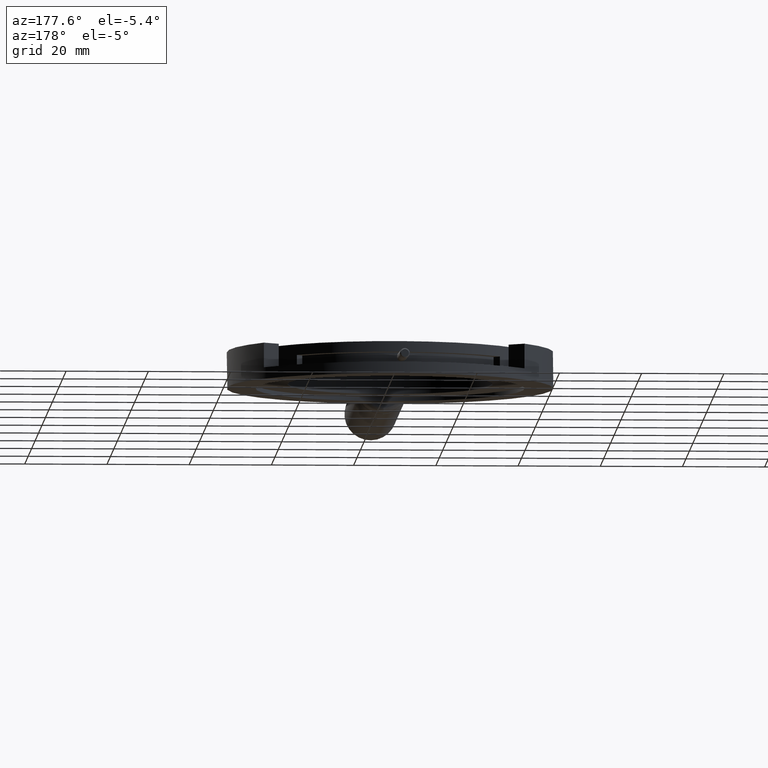
[diagram: clean part render]
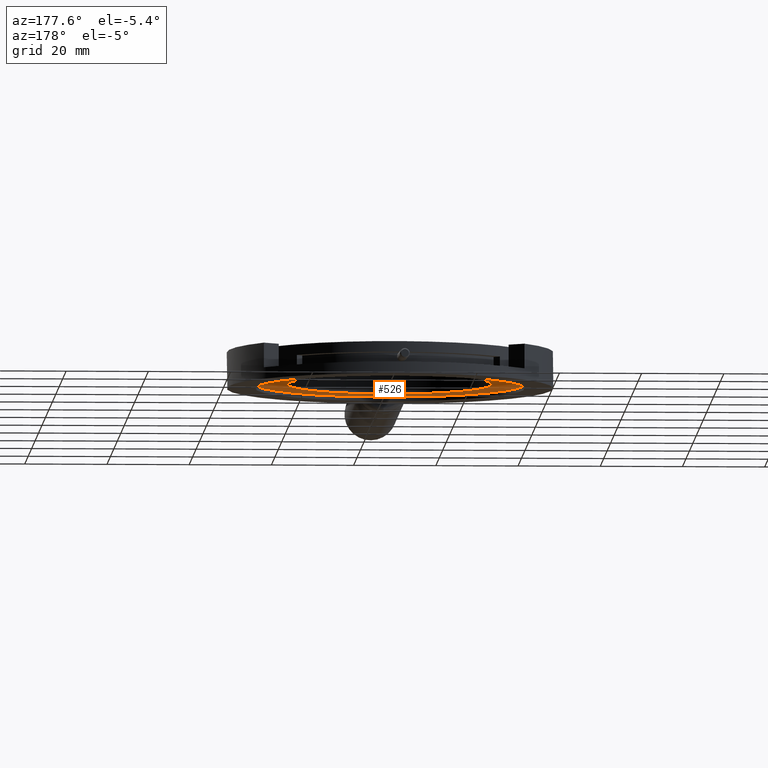
[diagram: same view with one face highlighted and labeled with its STEP entity id]
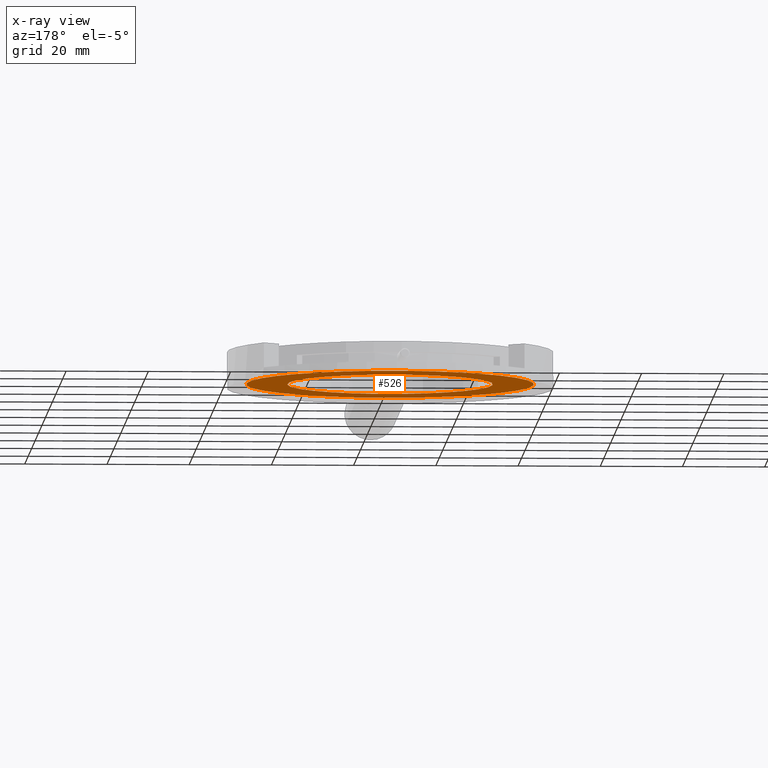
[diagram: x-ray of the same camera — body ghosted, the highlighted face saturated]
A machine part, auxiliary view. The second image highlights one B-rep face of the part: STEP entity #526.
The next image is the same camera in x-ray: the body ghosted, the highlighted face saturated — about 0% of this face is hidden behind the body in this view.
In plain terms, the highlighted planar face has unit normal (-0, 0, -1).
Its self-contained STEP definition (entity closure, byte-faithful):
#12 = DIRECTION ( 'NONE',  ( -0.000000000000000000, 0.000000000000000000, 1.000000000000000000 ) ) ;
#17 = AXIS2_PLACEMENT_3D ( 'NONE', #876, #12, #1169 ) ;
#77 = EDGE_LOOP ( 'NONE', ( #707 ) ) ;
#126 = ORIENTED_EDGE ( 'NONE', *, *, #1637, .F. ) ;
#289 = AXIS2_PLACEMENT_3D ( 'NONE', #582, #1162, #300 ) ;
#300 = DIRECTION ( 'NONE',  ( -0.9991883662406416677, -0.04028161825643754301, 0.000000000000000000 ) ) ;
#489 = CARTESIAN_POINT ( 'NONE',  ( -27.56368789268543651, -11.12216558356379181, 75.99300000000000921 ) ) ;
#526 = ADVANCED_FACE ( 'NONE', ( #844, #1432 ), #1423, .T. ) ;
#582 = CARTESIAN_POINT ( 'NONE',  ( -2.583978736669392262, -10.11512512715285261, 75.99300000000000921 ) ) ;
#619 = CIRCLE ( 'NONE', #289, 35.00000000000001421 ) ;
#699 = CARTESIAN_POINT ( 'NONE',  ( -2.583978736669392262, -10.11512512715285261, 75.99300000000000921 ) ) ;
#707 = ORIENTED_EDGE ( 'NONE', *, *, #1052, .T. ) ;
#844 = FACE_BOUND ( 'NONE', #77, .T. ) ;
#876 = CARTESIAN_POINT ( 'NONE',  ( -2.583978736669392262, -10.11512512715285261, 75.99300000000000921 ) ) ;
#884 = CIRCLE ( 'NONE', #17, 25.00000000000000355 ) ;
#954 = CARTESIAN_POINT ( 'NONE',  ( -37.55557155509186629, -11.52498176612816749, 75.99300000000000921 ) ) ;
#975 = AXIS2_PLACEMENT_3D ( 'NONE', #699, #996, #1284 ) ;
#996 = DIRECTION ( 'NONE',  ( -0.000000000000000000, 0.000000000000000000, -1.000000000000000000 ) ) ;
#1052 = EDGE_CURVE ( 'NONE', #1613, #1613, #884, .T. ) ;
#1162 = DIRECTION ( 'NONE',  ( -0.000000000000000000, 0.000000000000000000, 1.000000000000000000 ) ) ;
#1169 = DIRECTION ( 'NONE',  ( -0.9991883662406415567, -0.04028161825643756383, 0.000000000000000000 ) ) ;
#1284 = DIRECTION ( 'NONE',  ( -0.9991883662406416677, -0.04028161825643754301, 0.000000000000000000 ) ) ;
#1398 = EDGE_LOOP ( 'NONE', ( #126 ) ) ;
#1423 = PLANE ( 'NONE',  #975 ) ;
#1432 = FACE_OUTER_BOUND ( 'NONE', #1398, .T. ) ;
#1536 = VERTEX_POINT ( 'NONE', #954 ) ;
#1613 = VERTEX_POINT ( 'NONE', #489 ) ;
#1637 = EDGE_CURVE ( 'NONE', #1536, #1536, #619, .T. ) ;